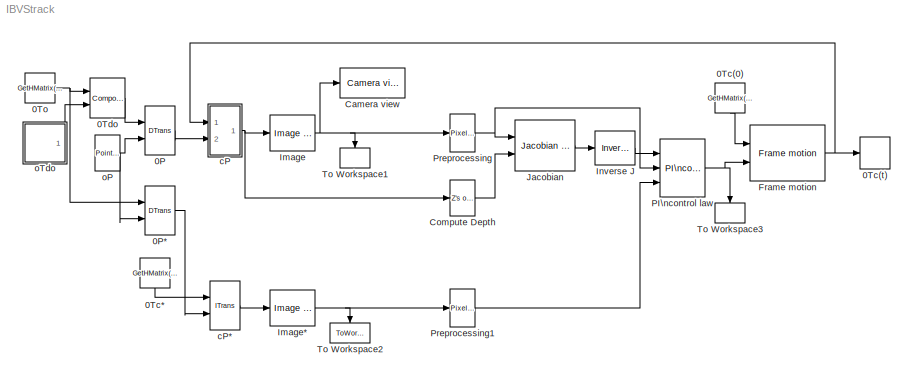
MODEL IBVStrack
KIND model
BLOCK [Reference] 0P  REF=vs/Features/DTrans  (lib defined in slx_df1018bcac68)
  DataTypeOverride = UseLocalSettings
  MinMaxOverflowLogging = UseLocalSettings
  Permissions = ReadWrite
  Ports = [2, 1]
  RTWFcnNameOpts = Auto
  RTWFileNameOpts = Auto
  RTWSystemCode = Auto
  SID = 1
  ShowPortLabels = on
  SimViewingDevice = off
  SourceBlock = vs/Features/DTrans
  SourceType = SubSystem
  TreatAsAtomicUnit = off
BLOCK [Reference] 0P*  REF=vs/Features/DTrans  (lib defined in slx_df1018bcac68)
  DataTypeOverride = UseLocalSettings
  MinMaxOverflowLogging = UseLocalSettings
  Permissions = ReadWrite
  Ports = [2, 1]
  RTWFcnNameOpts = Auto
  RTWFileNameOpts = Auto
  RTWSystemCode = Auto
  SID = 2
  ShowPortLabels = on
  SimViewingDevice = off
  SourceBlock = vs/Features/DTrans
  SourceType = SubSystem
  TreatAsAtomicUnit = off
BLOCK [Constant] 0Tc(0)
  SID = 3
  Value = GetHMatrix(T0c_x)
  VectorParams1D = off
BLOCK [ToWorkspace] 0Tc(t)
  MaxDataPoints = inf
  Ports = [1]
  SID = 4
  SampleTime = -1
  SaveFormat = Structure With Time
  VariableName = T0c
BLOCK [Constant] 0Tc*
  SID = 5
  Value = GetHMatrix(T0c_x)
  VectorParams1D = off
BLOCK [Reference] 0Tdo  REF=vs/Pose/Composition  (lib defined in slx_df1018bcac68)
  DataTypeOverride = UseLocalSettings
  MinMaxOverflowLogging = UseLocalSettings
  Permissions = ReadWrite
  Ports = [2, 1]
  RTWFcnNameOpts = Auto
  RTWFileNameOpts = Auto
  RTWSystemCode = Auto
  SID = 6
  ShowPortLabels = on
  SimViewingDevice = off
  SourceBlock = vs/Pose/Composition
  SourceType = SubSystem
  TreatAsAtomicUnit = off
BLOCK [Constant] 0To
  SID = 7
  Value = GetHMatrix(T0o)
  VectorParams1D = off
BLOCK [Reference] Camera view  REF=vs/Camera/Camera view  (lib defined in slx_df1018bcac68)
  Ports = [1]
  SID = 8
  SourceBlock = vs/Camera/Camera view
  em = normal
  ms = 15
  st = -1
  umax = get(c,'hres')-1
  umin = 0
  vmax = get(c,'vres')-1
  vmin = 0
BLOCK [Reference] Compute Depth  REF=vs/Features/Z's of RSP  (lib defined in slx_df1018bcac68)
  DataTypeOverride = UseLocalSettings
  MinMaxOverflowLogging = UseLocalSettings
  Permissions = ReadWrite
  Ports = [1, 1]
  RTWFcnNameOpts = Auto
  RTWFileNameOpts = Auto
  RTWSystemCode = Auto
  SID = 9
  ShowPortLabels = on
  SimViewingDevice = off
  SourceBlock = vs/Features/Z's of RSP
  SourceType = SubSystem
  TreatAsAtomicUnit = off
BLOCK [Reference] Frame motion  REF=vs/Pose/Frame motion  (lib defined in slx_df1018bcac68)
  DataTypeOverride = UseLocalSettings
  MinMaxOverflowLogging = UseLocalSettings
  Permissions = ReadWrite
  Ports = [2, 1]
  RTWFcnNameOpts = Auto
  RTWFileNameOpts = Auto
  RTWSystemCode = Auto
  SID = 10
  ShowPortLabels = on
  SimViewingDevice = off
  SourceBlock = vs/Pose/Frame motion
  SourceType = SubSystem
  TreatAsAtomicUnit = off
BLOCK [Reference] Image  REF=vs/Camera/Image of RSP  (lib defined in slx_df1018bcac68)
  Ports = [1, 1]
  SID = 11
  SourceBlock = vs/Camera/Image of RSP
  fu = get(c,'fu')
  fv = get(c,'fv')
  u0 = get(c,'u0')
  v0 = get(c,'v0')
BLOCK [Reference] Image*  REF=vs/Camera/Image of RSP  (lib defined in slx_df1018bcac68)
  Ports = [1, 1]
  SID = 12
  SourceBlock = vs/Camera/Image of RSP
  fu = get(c,'fu')
  fv = get(c,'fv')
  u0 = get(c,'u0')
  v0 = get(c,'v0')
BLOCK [Reference] Inverse J  REF=vs/Jacobian/Inverse J  (lib defined in slx_df1018bcac68)
  DataTypeOverride = UseLocalSettings
  MinMaxOverflowLogging = UseLocalSettings
  Permissions = ReadWrite
  Ports = [1, 1]
  RTWFcnNameOpts = Auto
  RTWFileNameOpts = Auto
  RTWSystemCode = Auto
  SID = 13
  ShowPortLabels = on
  SimViewingDevice = off
  SourceBlock = vs/Jacobian/Inverse J
  SourceType = SubSystem
  TreatAsAtomicUnit = off
BLOCK [Reference] Jacobian  REF=vs/Jacobian/Jacobian of RSP  (lib defined in slx_df1018bcac68)
  DataTypeOverride = UseLocalSettings
  MinMaxOverflowLogging = UseLocalSettings
  Permissions = ReadWrite
  Ports = [2, 1]
  RTWFcnNameOpts = Auto
  RTWFileNameOpts = Auto
  RTWSystemCode = Auto
  SID = 14
  ShowPortLabels = on
  SimViewingDevice = off
  SourceBlock = vs/Jacobian/Jacobian of RSP
  SourceType = SubSystem
  TreatAsAtomicUnit = off
BLOCK [Reference] PI\ncontrol law  REF=vs/Jacobian/PI\ncontrol law  (lib defined in slx_df1018bcac68)
  Ports = [3, 1]
  SID = 15
  SourceBlock = vs/Jacobian/PI\ncontrol law
  lambda = 5
  mu = 10
BLOCK [Reference] Preprocessing  REF=vs/Jacobian/Pixel2s  (lib defined in slx_df1018bcac68)
  Ports = [1, 1]
  SID = 16
  SourceBlock = vs/Jacobian/Pixel2s
  fu = get(c,'fu')
  fv = get(c,'fv')
  u0 = get(c,'u0')
  v0 = get(c,'v0')
BLOCK [Reference] Preprocessing1  REF=vs/Jacobian/Pixel2s  (lib defined in slx_df1018bcac68)
  Ports = [1, 1]
  SID = 17
  SourceBlock = vs/Jacobian/Pixel2s
  fu = get(c,'fu')
  fv = get(c,'fv')
  u0 = get(c,'u0')
  v0 = get(c,'v0')
BLOCK [ToWorkspace] To Workspace1
  MaxDataPoints = inf
  Ports = [1]
  SID = 18
  SampleTime = -1
  SaveFormat = Structure With Time
  VariableName = img
BLOCK [ToWorkspace] To Workspace2
  MaxDataPoints = inf
  Ports = [1]
  SID = 19
  SampleTime = -1
  SaveFormat = Structure With Time
  VariableName = img_x
BLOCK [ToWorkspace] To Workspace3
  MaxDataPoints = inf
  Ports = [1]
  SID = 20
  SampleTime = -1
  SaveFormat = Structure With Time
  VariableName = cVc
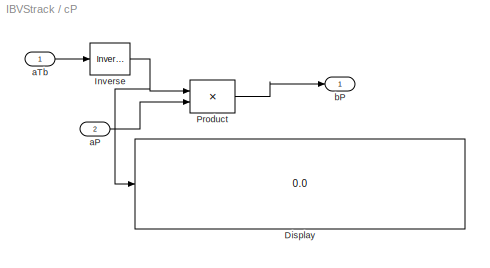
BLOCK [SubSystem] cP
  AncestorBlock = vs/Features/ITrans
  Ports = [2, 1]
  RequestExecContextInheritance = off
  SID = 21
BLOCK [Reference] cP*  REF=vs/Features/ITrans  (lib defined in slx_df1018bcac68)
  DataTypeOverride = UseLocalSettings
  MinMaxOverflowLogging = UseLocalSettings
  Permissions = ReadWrite
  Ports = [2, 1]
  RTWFcnNameOpts = Auto
  RTWFileNameOpts = Auto
  RTWSystemCode = Auto
  SID = 22
  ShowPortLabels = on
  SimViewingDevice = off
  SourceBlock = vs/Features/ITrans
  SourceType = SubSystem
  TreatAsAtomicUnit = off
BLOCK [Display] cP/Display
  Decimation = 1
  Ports = [1]
  SID = 21:3
BLOCK [Reference] cP/Inverse  REF=vs/Pose/Inverse  (lib defined in slx_df1018bcac68)
  Ports = [1, 1]
  RTWFcnNameOpts = Auto
  RTWFileNameOpts = Auto
  RTWSystemCode = Auto
  SID = 21:4
  ShowPortLabels = on
  SourceBlock = vs/Pose/Inverse
  SourceType = SubSystem
  TreatAsAtomicUnit = off
BLOCK [Product] cP/Product
  Multiplication = Matrix(*)
  Ports = [2, 1]
  RndMeth = Floor
  SID = 21:5
BLOCK [Inport] cP/aP
  IconDisplay = Port number
  Port = 2
  SID = 21:2
BLOCK [Inport] cP/aTb
  IconDisplay = Port number
  SID = 21:1
BLOCK [Outport] cP/bP
  IconDisplay = Port number
  SID = 21:6
BLOCK [Reference] oP  REF=vs/Features/Point Matrix  (lib defined in slx_df1018bcac68)
  Ports = [0, 1]
  SID = 23
  SourceBlock = vs/Features/Point Matrix
  m = coords(p)
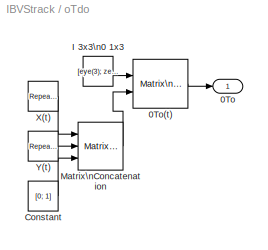
BLOCK [SubSystem] oTdo
  Ports = [0, 1]
  RequestExecContextInheritance = off
  SID = 24
BLOCK [Outport] oTdo/0To
  IconDisplay = Port number
  SID = 31
BLOCK [Reference] oTdo/0To(t)  REF=simulink3/Signals\n& Systems/Matrix\nConcatenation
  Ports = [2, 1]
  SID = 25
  SourceBlock = simulink3/Signals\n& Systems/Matrix\nConcatenation
  SourceProductBaseCode = SL
  SourceProductName = Simulink
  SourceType = Matrix Concatenation
  catMethod = Horizontal
  numInports = 2
BLOCK [Constant] oTdo/Constant
  SID = 26
  Value = [0; 1]
  VectorParams1D = off
BLOCK [Constant] oTdo/I 3x3\n0 1x3
  SID = 27
  Value = [eye(3); zeros(1,3)]
  VectorParams1D = off
BLOCK [Reference] oTdo/Matrix\nConcatenation  REF=simulink3/Signals\n& Systems/Matrix\nConcatenation
  Ports = [3, 1]
  SID = 28
  SourceBlock = simulink3/Signals\n& Systems/Matrix\nConcatenation
  SourceProductBaseCode = SL
  SourceProductName = Simulink
  SourceType = Matrix Concatenation
  catMethod = Vertical
  numInports = 3
BLOCK [Reference] oTdo/X(t)  REF=simulink3/Sources/Repeating\nSequence
  Ports = [0, 1]
  SID = 29
  SourceBlock = simulink3/Sources/Repeating\nSequence
  SourceProductBaseCode = SL
  SourceProductName = Simulink
  SourceType = Repeating table
  rep_seq_t = [0 1 2 3 4] * 5
  rep_seq_y = [0 1 1 0 0] * 0.1
BLOCK [Reference] oTdo/Y(t)  REF=simulink3/Sources/Repeating\nSequence
  Ports = [0, 1]
  SID = 30
  SourceBlock = simulink3/Sources/Repeating\nSequence
  SourceProductBaseCode = SL
  SourceProductName = Simulink
  SourceType = Repeating table
  rep_seq_t = [0 1 2 3 4] * 5
  rep_seq_y = [0 0 1 1 0] * 0.1
LINE 0P*:1 -> cP*:2
LINE 0P:1 -> cP:2
LINE 0Tc(0):1 -> Frame motion:1
LINE 0Tc*:1 -> cP*:1
LINE 0Tdo:1 -> 0P:1
NET 0To:1 -> 0P*:1, 0Tdo:1
LINE Compute Depth:1 -> Jacobian:2
NET Frame motion:1 -> 0Tc(t):1, cP:1
NET Image*:1 -> Preprocessing1:1, To Workspace2:1
NET Image:1 -> Camera view:1, Preprocessing:1, To Workspace1:1
LINE Inverse J:1 -> PI\ncontrol law:1
LINE Jacobian:1 -> Inverse J:1
NET PI\ncontrol law:1 -> Frame motion:2, To Workspace3:1
LINE Preprocessing1:1 -> PI\ncontrol law:3
NET Preprocessing:1 -> Jacobian:1, PI\ncontrol law:2
LINE cP*:1 -> Image*:1
NET cP/Inverse:1 -> cP/Display:1, cP/Product:1
LINE cP/Product:1 -> cP/bP:1
LINE cP/aP:1 -> cP/Product:2
LINE cP/aTb:1 -> cP/Inverse:1
NET cP:1 -> Compute Depth:1, Image:1
NET oP:1 -> 0P*:2, 0P:2
LINE oTdo/0To(t):1 -> oTdo/0To:1
LINE oTdo/Constant:1 -> oTdo/Matrix\nConcatenation:3
LINE oTdo/I 3x3\n0 1x3:1 -> oTdo/0To(t):1
LINE oTdo/Matrix\nConcatenation:1 -> oTdo/0To(t):2
LINE oTdo/X(t):1 -> oTdo/Matrix\nConcatenation:1
LINE oTdo/Y(t):1 -> oTdo/Matrix\nConcatenation:2
LINE oTdo:1 -> 0Tdo:2
note: NET lines group one-source signal fan-out (src -> all destinations, sorted); 1:1 wires keep LINE
